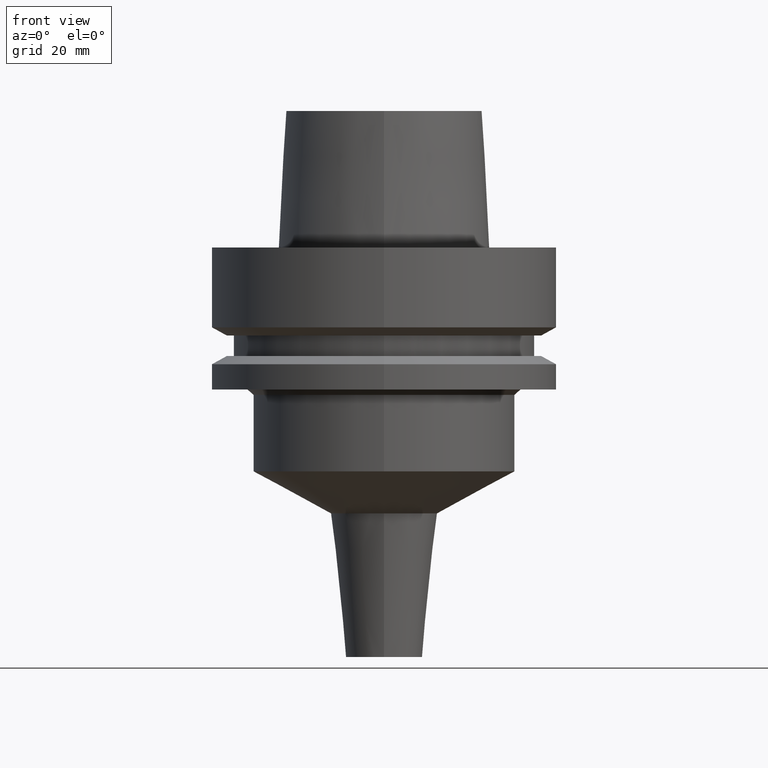
[diagram: clean part render]
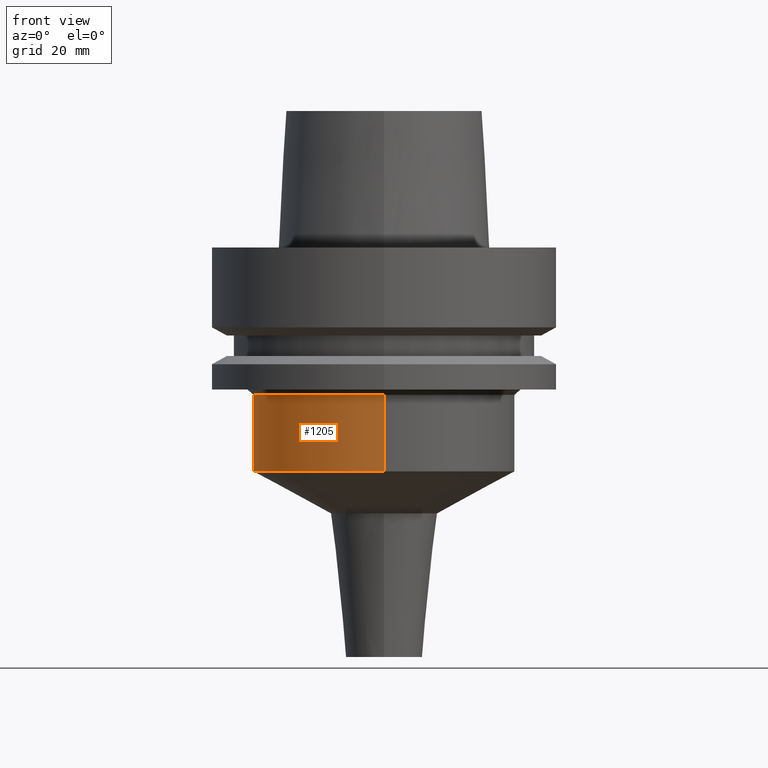
[diagram: same view with one face highlighted and labeled with its STEP entity id]
A machine part, front view. The second image highlights one B-rep face of the part: STEP entity #1205.
In plain terms, the highlighted cylindrical surface (partial cylindrical patch) has radius 24 mm, axis along (0, 0, -1).
Its self-contained STEP definition (entity closure, byte-faithful):
#301=CARTESIAN_POINT('',(0.E0,0.E0,-2.7E1));
#302=DIRECTION('',(0.E0,0.E0,-1.E0));
#303=DIRECTION('',(0.E0,-1.E0,0.E0));
#304=AXIS2_PLACEMENT_3D('',#301,#302,#303);
#324=DIRECTION('',(0.E0,-3.222818837198E-14,-1.E0));
#325=VECTOR('',#324,1.4E1);
#326=CARTESIAN_POINT('',(0.E0,2.4E1,-2.7E1));
#327=LINE('',#326,#325);
#331=DIRECTION('',(0.E0,3.222818837198E-14,-1.E0));
#332=VECTOR('',#331,1.4E1);
#333=CARTESIAN_POINT('',(0.E0,-2.4E1,-2.7E1));
#334=LINE('',#333,#332);
#338=CARTESIAN_POINT('',(0.E0,0.E0,-4.1E1));
#339=DIRECTION('',(0.E0,0.E0,1.E0));
#340=DIRECTION('',(0.E0,1.E0,0.E0));
#341=AXIS2_PLACEMENT_3D('',#338,#339,#340);
#852=CARTESIAN_POINT('',(0.E0,2.4E1,-4.1E1));
#853=VERTEX_POINT('',#852);
#854=CARTESIAN_POINT('',(0.E0,-2.4E1,-4.1E1));
#855=VERTEX_POINT('',#854);
#856=CARTESIAN_POINT('',(0.E0,2.4E1,-2.7E1));
#857=VERTEX_POINT('',#856);
#858=CARTESIAN_POINT('',(0.E0,-2.4E1,-2.7E1));
#859=VERTEX_POINT('',#858);
#1193=CARTESIAN_POINT('',(0.E0,0.E0,3.E1));
#1194=DIRECTION('',(0.E0,0.E0,-1.E0));
#1195=DIRECTION('',(0.E0,-1.E0,0.E0));
#1196=AXIS2_PLACEMENT_3D('',#1193,#1194,#1195);
#1197=CYLINDRICAL_SURFACE('',#1196,2.4E1);
#1198=ORIENTED_EDGE('',*,*,#1183,.F.);
#1199=ORIENTED_EDGE('',*,*,#1160,.F.);
#1200=ORIENTED_EDGE('',*,*,#1187,.T.);
#1202=ORIENTED_EDGE('',*,*,#1201,.F.);
#1203=EDGE_LOOP('',(#1198,#1199,#1200,#1202));
#1204=FACE_OUTER_BOUND('',#1203,.F.);
#305=CIRCLE('',#304,2.4E1);
#342=CIRCLE('',#341,2.4E1);
#1160=EDGE_CURVE('',#859,#857,#305,.T.);
#1183=EDGE_CURVE('',#857,#853,#327,.T.);
#1187=EDGE_CURVE('',#859,#855,#334,.T.);
#1201=EDGE_CURVE('',#853,#855,#342,.T.);
#1205=ADVANCED_FACE('',(#1204),#1197,.T.);